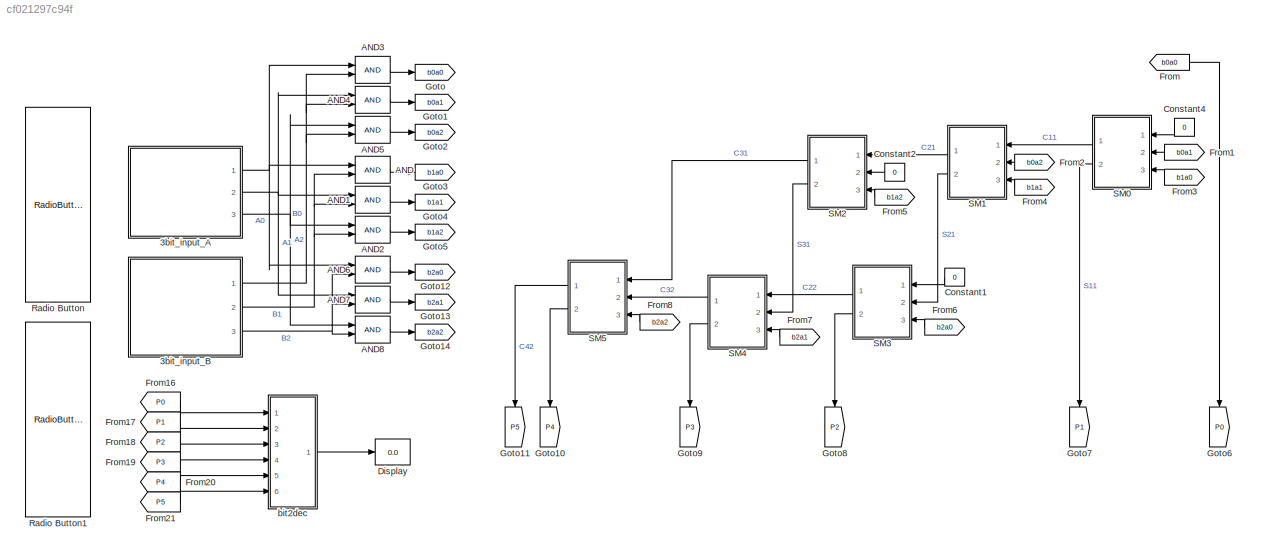
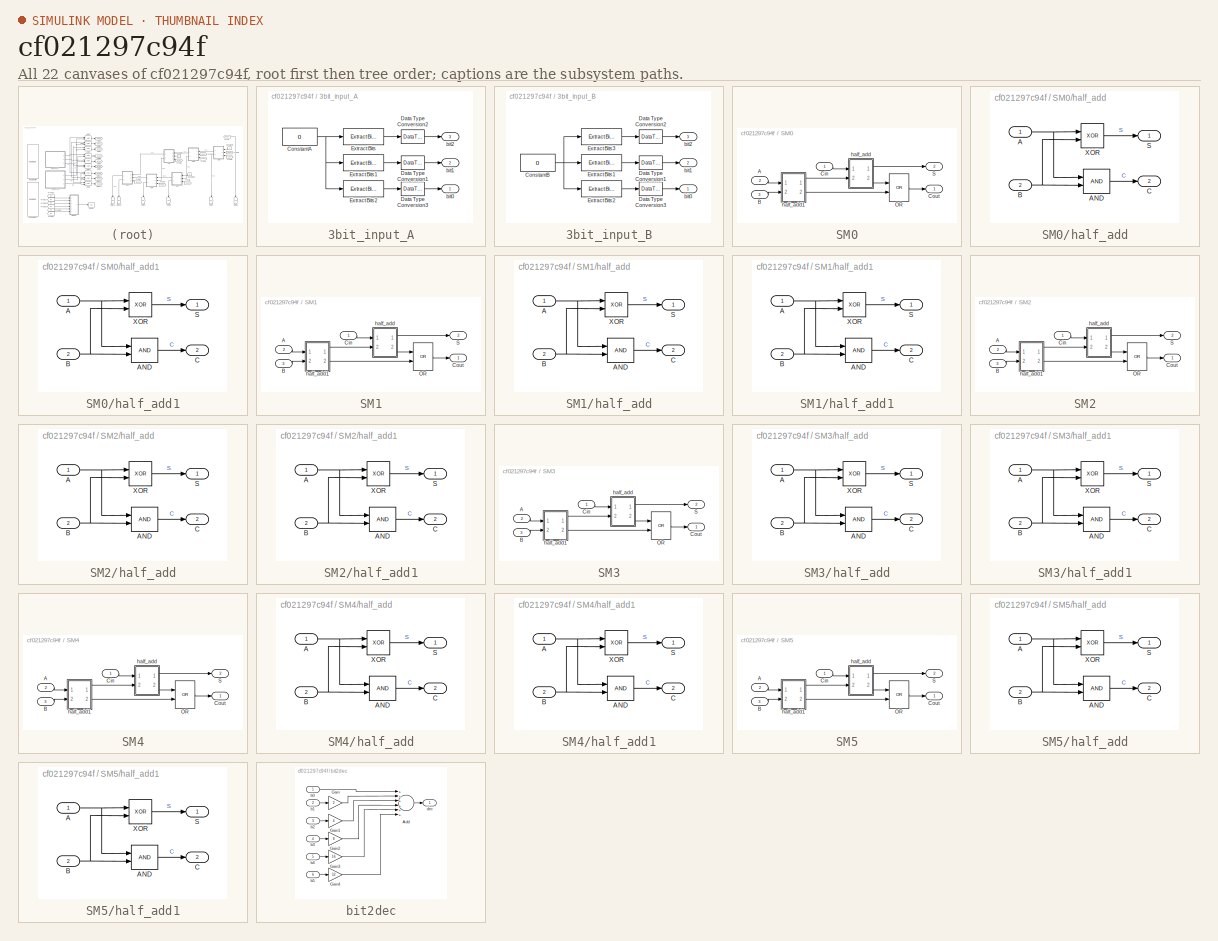
[diagram: thumbnail index - all 22 canvases of the model, root first then tree order]
MODEL slx_cf021297c94f
KIND model
CONFIG AbsTol = auto
CONFIG EnableMultiTasking = off
CONFIG FixedStep = 1
CONFIG MaxStep = 1
CONFIG MinStep = auto
CONFIG RelTol = 1e-3
CONFIG SampleTimeConstraint = Unconstrained
CONFIG Solver = FixedStepAuto
CONFIG SolverName = FixedStepAuto
CONFIG StartTime = 0.0
CONFIG StopTime = inf
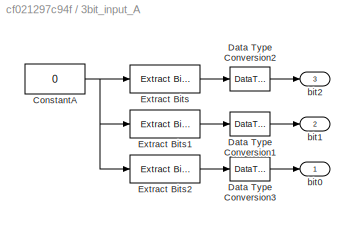
BLOCK [SubSystem] 3bit_input_A
  Ports = [0, 3]
  RequestExecContextInheritance = off
BLOCK [Constant] 3bit_input_A/ConstantA
  OutDataTypeStr = uint8
  OutMax = 7
  OutMin = 0
  Value = 0
BLOCK [DataTypeConversion] 3bit_input_A/Data Type Conversion1
  OutDataTypeStr = boolean
  RndMeth = Floor
  SaturateOnIntegerOverflow = off
BLOCK [DataTypeConversion] 3bit_input_A/Data Type Conversion2
  OutDataTypeStr = boolean
  RndMeth = Floor
  SaturateOnIntegerOverflow = off
BLOCK [DataTypeConversion] 3bit_input_A/Data Type Conversion3
  OutDataTypeStr = boolean
  RndMeth = Floor
  SaturateOnIntegerOverflow = off
BLOCK [Reference] 3bit_input_A/Extract Bits  REF=simulink/Logic and Bit
Operations/Extract Bits
  Ports = [1, 1]
  SourceBlock = simulink/Logic and Bit\nOperations/Extract Bits
  SourceProductBaseCode = SL
  SourceProductName = Simulink
  SourceType = Extract Bits
BLOCK [Reference] 3bit_input_A/Extract Bits1  REF=simulink/Logic and Bit
Operations/Extract Bits
  Ports = [1, 1]
  SourceBlock = simulink/Logic and Bit\nOperations/Extract Bits
  SourceProductBaseCode = SL
  SourceProductName = Simulink
  SourceType = Extract Bits
BLOCK [Reference] 3bit_input_A/Extract Bits2  REF=simulink/Logic and Bit
Operations/Extract Bits
  Ports = [1, 1]
  SourceBlock = simulink/Logic and Bit\nOperations/Extract Bits
  SourceProductBaseCode = SL
  SourceProductName = Simulink
  SourceType = Extract Bits
BLOCK [Outport] 3bit_input_A/bit0
  IconDisplay = Port number
BLOCK [Outport] 3bit_input_A/bit1
  IconDisplay = Port number
  Port = 2
BLOCK [Outport] 3bit_input_A/bit2
  IconDisplay = Port number
  Port = 3
BLOCK [SubSystem] 3bit_input_B
  Ports = [0, 3]
  RequestExecContextInheritance = off
BLOCK [Constant] 3bit_input_B/ConstantB
  OutDataTypeStr = uint8
  OutMax = 7
  OutMin = 0
  Value = 0
BLOCK [DataTypeConversion] 3bit_input_B/Data Type Conversion1
  OutDataTypeStr = boolean
  RndMeth = Floor
  SaturateOnIntegerOverflow = off
BLOCK [DataTypeConversion] 3bit_input_B/Data Type Conversion2
  OutDataTypeStr = boolean
  RndMeth = Floor
  SaturateOnIntegerOverflow = off
BLOCK [DataTypeConversion] 3bit_input_B/Data Type Conversion3
  OutDataTypeStr = boolean
  RndMeth = Floor
  SaturateOnIntegerOverflow = off
BLOCK [Reference] 3bit_input_B/Extract Bits1  REF=simulink/Logic and Bit
Operations/Extract Bits
  Ports = [1, 1]
  SourceBlock = simulink/Logic and Bit\nOperations/Extract Bits
  SourceProductBaseCode = SL
  SourceProductName = Simulink
  SourceType = Extract Bits
BLOCK [Reference] 3bit_input_B/Extract Bits2  REF=simulink/Logic and Bit
Operations/Extract Bits
  Ports = [1, 1]
  SourceBlock = simulink/Logic and Bit\nOperations/Extract Bits
  SourceProductBaseCode = SL
  SourceProductName = Simulink
  SourceType = Extract Bits
BLOCK [Reference] 3bit_input_B/Extract Bits3  REF=simulink/Logic and Bit
Operations/Extract Bits
  Ports = [1, 1]
  SourceBlock = simulink/Logic and Bit\nOperations/Extract Bits
  SourceProductBaseCode = SL
  SourceProductName = Simulink
  SourceType = Extract Bits
BLOCK [Outport] 3bit_input_B/bit0
  IconDisplay = Port number
BLOCK [Outport] 3bit_input_B/bit1
  IconDisplay = Port number
  Port = 2
BLOCK [Outport] 3bit_input_B/bit2
  IconDisplay = Port number
  Port = 3
BLOCK [Logic] AND
  AllPortsSameDT = off
  OutDataTypeStr = boolean
  Ports = [2, 1]
BLOCK [Logic] AND1
  AllPortsSameDT = off
  OutDataTypeStr = boolean
  Ports = [2, 1]
BLOCK [Logic] AND2
  AllPortsSameDT = off
  OutDataTypeStr = boolean
  Ports = [2, 1]
BLOCK [Logic] AND3
  AllPortsSameDT = off
  OutDataTypeStr = boolean
  Ports = [2, 1]
BLOCK [Logic] AND4
  AllPortsSameDT = off
  OutDataTypeStr = boolean
  Ports = [2, 1]
BLOCK [Logic] AND5
  AllPortsSameDT = off
  OutDataTypeStr = boolean
  Ports = [2, 1]
BLOCK [Logic] AND6
  AllPortsSameDT = off
  OutDataTypeStr = boolean
  Ports = [2, 1]
BLOCK [Logic] AND7
  AllPortsSameDT = off
  OutDataTypeStr = boolean
  Ports = [2, 1]
BLOCK [Logic] AND8
  AllPortsSameDT = off
  OutDataTypeStr = boolean
  Ports = [2, 1]
BLOCK [Constant] Constant1
  OutDataTypeStr = boolean
  Value = 0
BLOCK [Constant] Constant2
  OutDataTypeStr = boolean
  Value = 0
BLOCK [Constant] Constant4
  OutDataTypeStr = boolean
  Value = 0
BLOCK [Display] Display
  Decimation = 1
  Ports = [1]
BLOCK [From] From
  GotoTag = b0a0
BLOCK [From] From1
  GotoTag = b0a1
BLOCK [From] From16
  GotoTag = P0
BLOCK [From] From17
  GotoTag = P1
BLOCK [From] From18
  GotoTag = P2
BLOCK [From] From19
  GotoTag = P3
BLOCK [From] From2
  GotoTag = b0a2
BLOCK [From] From20
  GotoTag = P4
BLOCK [From] From21
  GotoTag = P5
BLOCK [From] From3
  GotoTag = b1a0
BLOCK [From] From4
  GotoTag = b1a1
BLOCK [From] From5
  GotoTag = b1a2
BLOCK [From] From6
  GotoTag = b2a0
BLOCK [From] From7
  GotoTag = b2a1
BLOCK [From] From8
  GotoTag = b2a2
BLOCK [Goto] Goto
  GotoTag = b0a0
BLOCK [Goto] Goto1
  GotoTag = b0a1
BLOCK [Goto] Goto10
  GotoTag = P4
BLOCK [Goto] Goto11
  GotoTag = P5
BLOCK [Goto] Goto12
  GotoTag = b2a0
BLOCK [Goto] Goto13
  GotoTag = b2a1
BLOCK [Goto] Goto14
  GotoTag = b2a2
BLOCK [Goto] Goto2
  GotoTag = b0a2
BLOCK [Goto] Goto3
  GotoTag = b1a0
BLOCK [Goto] Goto4
  GotoTag = b1a1
BLOCK [Goto] Goto5
  GotoTag = b1a2
BLOCK [Goto] Goto6
  GotoTag = P0
BLOCK [Goto] Goto7
  GotoTag = P1
BLOCK [Goto] Goto8
  GotoTag = P2
BLOCK [Goto] Goto9
  GotoTag = P3
BLOCK [RadioButtonGroup] Radio Button
  SelectedLabel = 0
BLOCK [RadioButtonGroup] Radio Button1
  SelectedLabel = 0
BLOCK [SubSystem] SM0
  Ports = [3, 2]
  RequestExecContextInheritance = off
BLOCK [Inport] SM0/A
  IconDisplay = Port number
  Port = 2
BLOCK [Inport] SM0/B
  IconDisplay = Port number
  Port = 3
BLOCK [Inport] SM0/Cin
  IconDisplay = Port number
BLOCK [Outport] SM0/Cout
  IconDisplay = Port number
BLOCK [Logic] SM0/OR
  AllPortsSameDT = off
  Operator = OR
  OutDataTypeStr = boolean
  Ports = [2, 1]
BLOCK [Outport] SM0/S
  IconDisplay = Port number
  Port = 2
BLOCK [SubSystem] SM0/half_add
  Ports = [2, 2]
  RequestExecContextInheritance = off
BLOCK [Inport] SM0/half_add/A
  IconDisplay = Port number
BLOCK [Logic] SM0/half_add/AND
  AllPortsSameDT = off
  IconShape = distinctive
  OutDataTypeStr = boolean
  Ports = [2, 1]
BLOCK [Inport] SM0/half_add/B
  IconDisplay = Port number
  Port = 2
BLOCK [Outport] SM0/half_add/C
  IconDisplay = Port number
  Port = 2
BLOCK [Outport] SM0/half_add/S
  IconDisplay = Port number
BLOCK [Logic] SM0/half_add/XOR
  AllPortsSameDT = off
  IconShape = distinctive
  Operator = XOR
  OutDataTypeStr = boolean
  Ports = [2, 1]
BLOCK [SubSystem] SM0/half_add1
  Ports = [2, 2]
  RequestExecContextInheritance = off
BLOCK [Inport] SM0/half_add1/A
  IconDisplay = Port number
BLOCK [Logic] SM0/half_add1/AND
  AllPortsSameDT = off
  IconShape = distinctive
  OutDataTypeStr = boolean
  Ports = [2, 1]
BLOCK [Inport] SM0/half_add1/B
  IconDisplay = Port number
  Port = 2
BLOCK [Outport] SM0/half_add1/C
  IconDisplay = Port number
  Port = 2
BLOCK [Outport] SM0/half_add1/S
  IconDisplay = Port number
BLOCK [Logic] SM0/half_add1/XOR
  AllPortsSameDT = off
  IconShape = distinctive
  Operator = XOR
  OutDataTypeStr = boolean
  Ports = [2, 1]
BLOCK [SubSystem] SM1
  Ports = [3, 2]
  RequestExecContextInheritance = off
BLOCK [Inport] SM1/A
  IconDisplay = Port number
  Port = 2
BLOCK [Inport] SM1/B
  IconDisplay = Port number
  Port = 3
BLOCK [Inport] SM1/Cin
  IconDisplay = Port number
BLOCK [Outport] SM1/Cout
  IconDisplay = Port number
BLOCK [Logic] SM1/OR
  AllPortsSameDT = off
  Operator = OR
  OutDataTypeStr = boolean
  Ports = [2, 1]
BLOCK [Outport] SM1/S
  IconDisplay = Port number
  Port = 2
BLOCK [SubSystem] SM1/half_add
  Ports = [2, 2]
  RequestExecContextInheritance = off
BLOCK [Inport] SM1/half_add/A
  IconDisplay = Port number
BLOCK [Logic] SM1/half_add/AND
  AllPortsSameDT = off
  IconShape = distinctive
  OutDataTypeStr = boolean
  Ports = [2, 1]
BLOCK [Inport] SM1/half_add/B
  IconDisplay = Port number
  Port = 2
BLOCK [Outport] SM1/half_add/C
  IconDisplay = Port number
  Port = 2
BLOCK [Outport] SM1/half_add/S
  IconDisplay = Port number
BLOCK [Logic] SM1/half_add/XOR
  AllPortsSameDT = off
  IconShape = distinctive
  Operator = XOR
  OutDataTypeStr = boolean
  Ports = [2, 1]
BLOCK [SubSystem] SM1/half_add1
  Ports = [2, 2]
  RequestExecContextInheritance = off
BLOCK [Inport] SM1/half_add1/A
  IconDisplay = Port number
BLOCK [Logic] SM1/half_add1/AND
  AllPortsSameDT = off
  IconShape = distinctive
  OutDataTypeStr = boolean
  Ports = [2, 1]
BLOCK [Inport] SM1/half_add1/B
  IconDisplay = Port number
  Port = 2
BLOCK [Outport] SM1/half_add1/C
  IconDisplay = Port number
  Port = 2
BLOCK [Outport] SM1/half_add1/S
  IconDisplay = Port number
BLOCK [Logic] SM1/half_add1/XOR
  AllPortsSameDT = off
  IconShape = distinctive
  Operator = XOR
  OutDataTypeStr = boolean
  Ports = [2, 1]
BLOCK [SubSystem] SM2
  Ports = [3, 2]
  RequestExecContextInheritance = off
BLOCK [Inport] SM2/A
  IconDisplay = Port number
  Port = 2
BLOCK [Inport] SM2/B
  IconDisplay = Port number
  Port = 3
BLOCK [Inport] SM2/Cin
  IconDisplay = Port number
BLOCK [Outport] SM2/Cout
  IconDisplay = Port number
BLOCK [Logic] SM2/OR
  AllPortsSameDT = off
  Operator = OR
  OutDataTypeStr = boolean
  Ports = [2, 1]
BLOCK [Outport] SM2/S
  IconDisplay = Port number
  Port = 2
BLOCK [SubSystem] SM2/half_add
  Ports = [2, 2]
  RequestExecContextInheritance = off
BLOCK [Inport] SM2/half_add/A
  IconDisplay = Port number
BLOCK [Logic] SM2/half_add/AND
  AllPortsSameDT = off
  IconShape = distinctive
  OutDataTypeStr = boolean
  Ports = [2, 1]
BLOCK [Inport] SM2/half_add/B
  IconDisplay = Port number
  Port = 2
BLOCK [Outport] SM2/half_add/C
  IconDisplay = Port number
  Port = 2
BLOCK [Outport] SM2/half_add/S
  IconDisplay = Port number
BLOCK [Logic] SM2/half_add/XOR
  AllPortsSameDT = off
  IconShape = distinctive
  Operator = XOR
  OutDataTypeStr = boolean
  Ports = [2, 1]
BLOCK [SubSystem] SM2/half_add1
  Ports = [2, 2]
  RequestExecContextInheritance = off
BLOCK [Inport] SM2/half_add1/A
  IconDisplay = Port number
BLOCK [Logic] SM2/half_add1/AND
  AllPortsSameDT = off
  IconShape = distinctive
  OutDataTypeStr = boolean
  Ports = [2, 1]
BLOCK [Inport] SM2/half_add1/B
  IconDisplay = Port number
  Port = 2
BLOCK [Outport] SM2/half_add1/C
  IconDisplay = Port number
  Port = 2
BLOCK [Outport] SM2/half_add1/S
  IconDisplay = Port number
BLOCK [Logic] SM2/half_add1/XOR
  AllPortsSameDT = off
  IconShape = distinctive
  Operator = XOR
  OutDataTypeStr = boolean
  Ports = [2, 1]
BLOCK [SubSystem] SM3
  Ports = [3, 2]
  RequestExecContextInheritance = off
BLOCK [Inport] SM3/A
  IconDisplay = Port number
  Port = 2
BLOCK [Inport] SM3/B
  IconDisplay = Port number
  Port = 3
BLOCK [Inport] SM3/Cin
  IconDisplay = Port number
BLOCK [Outport] SM3/Cout
  IconDisplay = Port number
BLOCK [Logic] SM3/OR
  AllPortsSameDT = off
  Operator = OR
  OutDataTypeStr = boolean
  Ports = [2, 1]
BLOCK [Outport] SM3/S
  IconDisplay = Port number
  Port = 2
BLOCK [SubSystem] SM3/half_add
  Ports = [2, 2]
  RequestExecContextInheritance = off
BLOCK [Inport] SM3/half_add/A
  IconDisplay = Port number
BLOCK [Logic] SM3/half_add/AND
  AllPortsSameDT = off
  IconShape = distinctive
  OutDataTypeStr = boolean
  Ports = [2, 1]
BLOCK [Inport] SM3/half_add/B
  IconDisplay = Port number
  Port = 2
BLOCK [Outport] SM3/half_add/C
  IconDisplay = Port number
  Port = 2
BLOCK [Outport] SM3/half_add/S
  IconDisplay = Port number
BLOCK [Logic] SM3/half_add/XOR
  AllPortsSameDT = off
  IconShape = distinctive
  Operator = XOR
  OutDataTypeStr = boolean
  Ports = [2, 1]
BLOCK [SubSystem] SM3/half_add1
  Ports = [2, 2]
  RequestExecContextInheritance = off
BLOCK [Inport] SM3/half_add1/A
  IconDisplay = Port number
BLOCK [Logic] SM3/half_add1/AND
  AllPortsSameDT = off
  IconShape = distinctive
  OutDataTypeStr = boolean
  Ports = [2, 1]
BLOCK [Inport] SM3/half_add1/B
  IconDisplay = Port number
  Port = 2
BLOCK [Outport] SM3/half_add1/C
  IconDisplay = Port number
  Port = 2
BLOCK [Outport] SM3/half_add1/S
  IconDisplay = Port number
BLOCK [Logic] SM3/half_add1/XOR
  AllPortsSameDT = off
  IconShape = distinctive
  Operator = XOR
  OutDataTypeStr = boolean
  Ports = [2, 1]
BLOCK [SubSystem] SM4
  Ports = [3, 2]
  RequestExecContextInheritance = off
BLOCK [Inport] SM4/A
  IconDisplay = Port number
  Port = 2
BLOCK [Inport] SM4/B
  IconDisplay = Port number
  Port = 3
BLOCK [Inport] SM4/Cin
  IconDisplay = Port number
BLOCK [Outport] SM4/Cout
  IconDisplay = Port number
BLOCK [Logic] SM4/OR
  AllPortsSameDT = off
  Operator = OR
  OutDataTypeStr = boolean
  Ports = [2, 1]
BLOCK [Outport] SM4/S
  IconDisplay = Port number
  Port = 2
BLOCK [SubSystem] SM4/half_add
  Ports = [2, 2]
  RequestExecContextInheritance = off
BLOCK [Inport] SM4/half_add/A
  IconDisplay = Port number
BLOCK [Logic] SM4/half_add/AND
  AllPortsSameDT = off
  IconShape = distinctive
  OutDataTypeStr = boolean
  Ports = [2, 1]
BLOCK [Inport] SM4/half_add/B
  IconDisplay = Port number
  Port = 2
BLOCK [Outport] SM4/half_add/C
  IconDisplay = Port number
  Port = 2
BLOCK [Outport] SM4/half_add/S
  IconDisplay = Port number
BLOCK [Logic] SM4/half_add/XOR
  AllPortsSameDT = off
  IconShape = distinctive
  Operator = XOR
  OutDataTypeStr = boolean
  Ports = [2, 1]
BLOCK [SubSystem] SM4/half_add1
  Ports = [2, 2]
  RequestExecContextInheritance = off
BLOCK [Inport] SM4/half_add1/A
  IconDisplay = Port number
BLOCK [Logic] SM4/half_add1/AND
  AllPortsSameDT = off
  IconShape = distinctive
  OutDataTypeStr = boolean
  Ports = [2, 1]
BLOCK [Inport] SM4/half_add1/B
  IconDisplay = Port number
  Port = 2
BLOCK [Outport] SM4/half_add1/C
  IconDisplay = Port number
  Port = 2
BLOCK [Outport] SM4/half_add1/S
  IconDisplay = Port number
BLOCK [Logic] SM4/half_add1/XOR
  AllPortsSameDT = off
  IconShape = distinctive
  Operator = XOR
  OutDataTypeStr = boolean
  Ports = [2, 1]
BLOCK [SubSystem] SM5
  Ports = [3, 2]
  RequestExecContextInheritance = off
BLOCK [Inport] SM5/A
  IconDisplay = Port number
  Port = 2
BLOCK [Inport] SM5/B
  IconDisplay = Port number
  Port = 3
BLOCK [Inport] SM5/Cin
  IconDisplay = Port number
BLOCK [Outport] SM5/Cout
  IconDisplay = Port number
BLOCK [Logic] SM5/OR
  AllPortsSameDT = off
  Operator = OR
  OutDataTypeStr = boolean
  Ports = [2, 1]
BLOCK [Outport] SM5/S
  IconDisplay = Port number
  Port = 2
BLOCK [SubSystem] SM5/half_add
  Ports = [2, 2]
  RequestExecContextInheritance = off
BLOCK [Inport] SM5/half_add/A
  IconDisplay = Port number
BLOCK [Logic] SM5/half_add/AND
  AllPortsSameDT = off
  IconShape = distinctive
  OutDataTypeStr = boolean
  Ports = [2, 1]
BLOCK [Inport] SM5/half_add/B
  IconDisplay = Port number
  Port = 2
BLOCK [Outport] SM5/half_add/C
  IconDisplay = Port number
  Port = 2
BLOCK [Outport] SM5/half_add/S
  IconDisplay = Port number
BLOCK [Logic] SM5/half_add/XOR
  AllPortsSameDT = off
  IconShape = distinctive
  Operator = XOR
  OutDataTypeStr = boolean
  Ports = [2, 1]
BLOCK [SubSystem] SM5/half_add1
  Ports = [2, 2]
  RequestExecContextInheritance = off
BLOCK [Inport] SM5/half_add1/A
  IconDisplay = Port number
BLOCK [Logic] SM5/half_add1/AND
  AllPortsSameDT = off
  IconShape = distinctive
  OutDataTypeStr = boolean
  Ports = [2, 1]
BLOCK [Inport] SM5/half_add1/B
  IconDisplay = Port number
  Port = 2
BLOCK [Outport] SM5/half_add1/C
  IconDisplay = Port number
  Port = 2
BLOCK [Outport] SM5/half_add1/S
  IconDisplay = Port number
BLOCK [Logic] SM5/half_add1/XOR
  AllPortsSameDT = off
  IconShape = distinctive
  Operator = XOR
  OutDataTypeStr = boolean
  Ports = [2, 1]
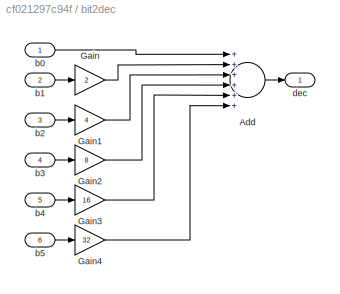
BLOCK [SubSystem] bit2dec
  Ports = [6, 1]
  RequestExecContextInheritance = off
BLOCK [Sum] bit2dec/Add
  InputSameDT = off
  Inputs = ++++++
  OutDataTypeStr = Inherit: Inherit via internal rule
  Ports = [6, 1]
  SaturateOnIntegerOverflow = off
BLOCK [Gain] bit2dec/Gain
  Gain = 2
  OutDataTypeStr = Inherit: Inherit via internal rule
  ParamDataTypeStr = Inherit: Inherit via internal rule
  SaturateOnIntegerOverflow = off
BLOCK [Gain] bit2dec/Gain1
  Gain = 4
  OutDataTypeStr = Inherit: Inherit via internal rule
  ParamDataTypeStr = Inherit: Inherit via internal rule
  SaturateOnIntegerOverflow = off
BLOCK [Gain] bit2dec/Gain2
  Gain = 8
  OutDataTypeStr = Inherit: Inherit via internal rule
  ParamDataTypeStr = Inherit: Inherit via internal rule
  SaturateOnIntegerOverflow = off
BLOCK [Gain] bit2dec/Gain3
  Gain = 16
  OutDataTypeStr = Inherit: Inherit via internal rule
  ParamDataTypeStr = Inherit: Inherit via internal rule
  SaturateOnIntegerOverflow = off
BLOCK [Gain] bit2dec/Gain4
  Gain = 32
  OutDataTypeStr = Inherit: Inherit via internal rule
  ParamDataTypeStr = Inherit: Inherit via internal rule
  SaturateOnIntegerOverflow = off
BLOCK [Inport] bit2dec/b0
  IconDisplay = Port number
BLOCK [Inport] bit2dec/b1
  IconDisplay = Port number
  Port = 2
BLOCK [Inport] bit2dec/b2
  IconDisplay = Port number
  Port = 3
BLOCK [Inport] bit2dec/b3
  IconDisplay = Port number
  Port = 4
BLOCK [Inport] bit2dec/b4
  IconDisplay = Port number
  Port = 5
BLOCK [Inport] bit2dec/b5
  IconDisplay = Port number
  Port = 6
BLOCK [Outport] bit2dec/dec
  IconDisplay = Port number
NET 3bit_input_A/ConstantA:1 -> 3bit_input_A/Extract Bits1:1, 3bit_input_A/Extract Bits2:1, 3bit_input_A/Extract Bits:1
LINE 3bit_input_A/Data Type Conversion1:1 -> 3bit_input_A/bit1:1
LINE 3bit_input_A/Data Type Conversion2:1 -> 3bit_input_A/bit2:1
LINE 3bit_input_A/Data Type Conversion3:1 -> 3bit_input_A/bit0:1
LINE 3bit_input_A/Extract Bits1:1 -> 3bit_input_A/Data Type Conversion1:1
LINE 3bit_input_A/Extract Bits2:1 -> 3bit_input_A/Data Type Conversion3:1
LINE 3bit_input_A/Extract Bits:1 -> 3bit_input_A/Data Type Conversion2:1
NET 3bit_input_A:1 -> AND3:1, AND6:1, AND:1
NET 3bit_input_A:2 -> AND1:1, AND4:1, AND7:1
NET 3bit_input_A:3 -> AND2:1, AND5:1, AND8:1
NET 3bit_input_B/ConstantB:1 -> 3bit_input_B/Extract Bits1:1, 3bit_input_B/Extract Bits2:1, 3bit_input_B/Extract Bits3:1
LINE 3bit_input_B/Data Type Conversion1:1 -> 3bit_input_B/bit1:1
LINE 3bit_input_B/Data Type Conversion2:1 -> 3bit_input_B/bit2:1
LINE 3bit_input_B/Data Type Conversion3:1 -> 3bit_input_B/bit0:1
LINE 3bit_input_B/Extract Bits1:1 -> 3bit_input_B/Data Type Conversion1:1
LINE 3bit_input_B/Extract Bits2:1 -> 3bit_input_B/Data Type Conversion3:1
LINE 3bit_input_B/Extract Bits3:1 -> 3bit_input_B/Data Type Conversion2:1
NET 3bit_input_B:1 -> AND3:2, AND4:2, AND5:2
NET 3bit_input_B:2 -> AND1:2, AND2:2, AND:2
NET 3bit_input_B:3 -> AND6:2, AND7:2, AND8:2
LINE AND1:1 -> Goto4:1
LINE AND2:1 -> Goto5:1
LINE AND3:1 -> Goto:1
LINE AND4:1 -> Goto1:1
LINE AND5:1 -> Goto2:1
LINE AND6:1 -> Goto12:1
LINE AND7:1 -> Goto13:1
LINE AND8:1 -> Goto14:1
LINE AND:1 -> Goto3:1
LINE Constant1:1 -> SM3:1
LINE Constant2:1 -> SM2:2
LINE Constant4:1 -> SM0:1
LINE From16:1 -> bit2dec:1
LINE From17:1 -> bit2dec:2
LINE From18:1 -> bit2dec:3
LINE From19:1 -> bit2dec:4
LINE From1:1 -> SM0:2
LINE From20:1 -> bit2dec:5
LINE From21:1 -> bit2dec:6
LINE From2:1 -> SM1:2
LINE From3:1 -> SM0:3
LINE From4:1 -> SM1:3
LINE From5:1 -> SM2:3
LINE From6:1 -> SM3:3
LINE From7:1 -> SM4:3
LINE From8:1 -> SM5:3
LINE From:1 -> Goto6:1
LINE SM0/A:1 -> SM0/half_add1:1
LINE SM0/B:1 -> SM0/half_add1:2
LINE SM0/Cin:1 -> SM0/half_add:1
LINE SM0/OR:1 -> SM0/Cout:1
NET SM0/half_add/A:1 -> SM0/half_add/AND:1, SM0/half_add/XOR:1
LINE SM0/half_add/AND:1 -> SM0/half_add/C:1
NET SM0/half_add/B:1 -> SM0/half_add/AND:2, SM0/half_add/XOR:2
LINE SM0/half_add/XOR:1 -> SM0/half_add/S:1
NET SM0/half_add1/A:1 -> SM0/half_add1/AND:1, SM0/half_add1/XOR:1
LINE SM0/half_add1/AND:1 -> SM0/half_add1/C:1
NET SM0/half_add1/B:1 -> SM0/half_add1/AND:2, SM0/half_add1/XOR:2
LINE SM0/half_add1/XOR:1 -> SM0/half_add1/S:1
LINE SM0/half_add1:1 -> SM0/half_add:2
LINE SM0/half_add1:2 -> SM0/OR:2
LINE SM0/half_add:1 -> SM0/S:1
LINE SM0/half_add:2 -> SM0/OR:1
LINE SM0:1 -> SM1:1
LINE SM0:2 -> Goto7:1
LINE SM1/A:1 -> SM1/half_add1:1
LINE SM1/B:1 -> SM1/half_add1:2
LINE SM1/Cin:1 -> SM1/half_add:1
LINE SM1/OR:1 -> SM1/Cout:1
NET SM1/half_add/A:1 -> SM1/half_add/AND:1, SM1/half_add/XOR:1
LINE SM1/half_add/AND:1 -> SM1/half_add/C:1
NET SM1/half_add/B:1 -> SM1/half_add/AND:2, SM1/half_add/XOR:2
LINE SM1/half_add/XOR:1 -> SM1/half_add/S:1
NET SM1/half_add1/A:1 -> SM1/half_add1/AND:1, SM1/half_add1/XOR:1
LINE SM1/half_add1/AND:1 -> SM1/half_add1/C:1
NET SM1/half_add1/B:1 -> SM1/half_add1/AND:2, SM1/half_add1/XOR:2
LINE SM1/half_add1/XOR:1 -> SM1/half_add1/S:1
LINE SM1/half_add1:1 -> SM1/half_add:2
LINE SM1/half_add1:2 -> SM1/OR:2
LINE SM1/half_add:1 -> SM1/S:1
LINE SM1/half_add:2 -> SM1/OR:1
LINE SM1:1 -> SM2:1
LINE SM1:2 -> SM3:2
LINE SM2/A:1 -> SM2/half_add1:1
LINE SM2/B:1 -> SM2/half_add1:2
LINE SM2/Cin:1 -> SM2/half_add:1
LINE SM2/OR:1 -> SM2/Cout:1
NET SM2/half_add/A:1 -> SM2/half_add/AND:1, SM2/half_add/XOR:1
LINE SM2/half_add/AND:1 -> SM2/half_add/C:1
NET SM2/half_add/B:1 -> SM2/half_add/AND:2, SM2/half_add/XOR:2
LINE SM2/half_add/XOR:1 -> SM2/half_add/S:1
NET SM2/half_add1/A:1 -> SM2/half_add1/AND:1, SM2/half_add1/XOR:1
LINE SM2/half_add1/AND:1 -> SM2/half_add1/C:1
NET SM2/half_add1/B:1 -> SM2/half_add1/AND:2, SM2/half_add1/XOR:2
LINE SM2/half_add1/XOR:1 -> SM2/half_add1/S:1
LINE SM2/half_add1:1 -> SM2/half_add:2
LINE SM2/half_add1:2 -> SM2/OR:2
LINE SM2/half_add:1 -> SM2/S:1
LINE SM2/half_add:2 -> SM2/OR:1
LINE SM2:1 -> SM5:1
LINE SM2:2 -> SM4:2
LINE SM3/A:1 -> SM3/half_add1:1
LINE SM3/B:1 -> SM3/half_add1:2
LINE SM3/Cin:1 -> SM3/half_add:1
LINE SM3/OR:1 -> SM3/Cout:1
NET SM3/half_add/A:1 -> SM3/half_add/AND:1, SM3/half_add/XOR:1
LINE SM3/half_add/AND:1 -> SM3/half_add/C:1
NET SM3/half_add/B:1 -> SM3/half_add/AND:2, SM3/half_add/XOR:2
LINE SM3/half_add/XOR:1 -> SM3/half_add/S:1
NET SM3/half_add1/A:1 -> SM3/half_add1/AND:1, SM3/half_add1/XOR:1
LINE SM3/half_add1/AND:1 -> SM3/half_add1/C:1
NET SM3/half_add1/B:1 -> SM3/half_add1/AND:2, SM3/half_add1/XOR:2
LINE SM3/half_add1/XOR:1 -> SM3/half_add1/S:1
LINE SM3/half_add1:1 -> SM3/half_add:2
LINE SM3/half_add1:2 -> SM3/OR:2
LINE SM3/half_add:1 -> SM3/S:1
LINE SM3/half_add:2 -> SM3/OR:1
LINE SM3:1 -> SM4:1
LINE SM3:2 -> Goto8:1
LINE SM4/A:1 -> SM4/half_add1:1
LINE SM4/B:1 -> SM4/half_add1:2
LINE SM4/Cin:1 -> SM4/half_add:1
LINE SM4/OR:1 -> SM4/Cout:1
NET SM4/half_add/A:1 -> SM4/half_add/AND:1, SM4/half_add/XOR:1
LINE SM4/half_add/AND:1 -> SM4/half_add/C:1
NET SM4/half_add/B:1 -> SM4/half_add/AND:2, SM4/half_add/XOR:2
LINE SM4/half_add/XOR:1 -> SM4/half_add/S:1
NET SM4/half_add1/A:1 -> SM4/half_add1/AND:1, SM4/half_add1/XOR:1
LINE SM4/half_add1/AND:1 -> SM4/half_add1/C:1
NET SM4/half_add1/B:1 -> SM4/half_add1/AND:2, SM4/half_add1/XOR:2
LINE SM4/half_add1/XOR:1 -> SM4/half_add1/S:1
LINE SM4/half_add1:1 -> SM4/half_add:2
LINE SM4/half_add1:2 -> SM4/OR:2
LINE SM4/half_add:1 -> SM4/S:1
LINE SM4/half_add:2 -> SM4/OR:1
LINE SM4:1 -> SM5:2
LINE SM4:2 -> Goto9:1
LINE SM5/A:1 -> SM5/half_add1:1
LINE SM5/B:1 -> SM5/half_add1:2
LINE SM5/Cin:1 -> SM5/half_add:1
LINE SM5/OR:1 -> SM5/Cout:1
NET SM5/half_add/A:1 -> SM5/half_add/AND:1, SM5/half_add/XOR:1
LINE SM5/half_add/AND:1 -> SM5/half_add/C:1
NET SM5/half_add/B:1 -> SM5/half_add/AND:2, SM5/half_add/XOR:2
LINE SM5/half_add/XOR:1 -> SM5/half_add/S:1
NET SM5/half_add1/A:1 -> SM5/half_add1/AND:1, SM5/half_add1/XOR:1
LINE SM5/half_add1/AND:1 -> SM5/half_add1/C:1
NET SM5/half_add1/B:1 -> SM5/half_add1/AND:2, SM5/half_add1/XOR:2
LINE SM5/half_add1/XOR:1 -> SM5/half_add1/S:1
LINE SM5/half_add1:1 -> SM5/half_add:2
LINE SM5/half_add1:2 -> SM5/OR:2
LINE SM5/half_add:1 -> SM5/S:1
LINE SM5/half_add:2 -> SM5/OR:1
LINE SM5:1 -> Goto11:1
LINE SM5:2 -> Goto10:1
LINE bit2dec/Add:1 -> bit2dec/dec:1
LINE bit2dec/Gain1:1 -> bit2dec/Add:3
LINE bit2dec/Gain2:1 -> bit2dec/Add:4
LINE bit2dec/Gain3:1 -> bit2dec/Add:5
LINE bit2dec/Gain4:1 -> bit2dec/Add:6
LINE bit2dec/Gain:1 -> bit2dec/Add:2
LINE bit2dec/b0:1 -> bit2dec/Add:1
LINE bit2dec/b1:1 -> bit2dec/Gain:1
LINE bit2dec/b2:1 -> bit2dec/Gain1:1
LINE bit2dec/b3:1 -> bit2dec/Gain2:1
LINE bit2dec/b4:1 -> bit2dec/Gain3:1
LINE bit2dec/b5:1 -> bit2dec/Gain4:1
LINE bit2dec:1 -> Display:1
note: NET lines group one-source signal fan-out (src -> all destinations, sorted); 1:1 wires keep LINE
